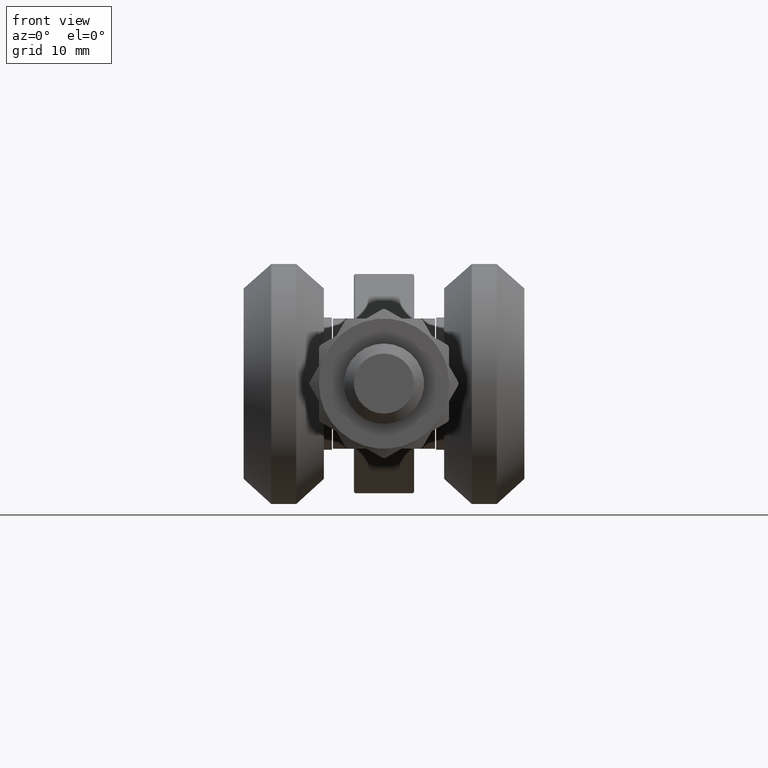
[diagram: clean part render]
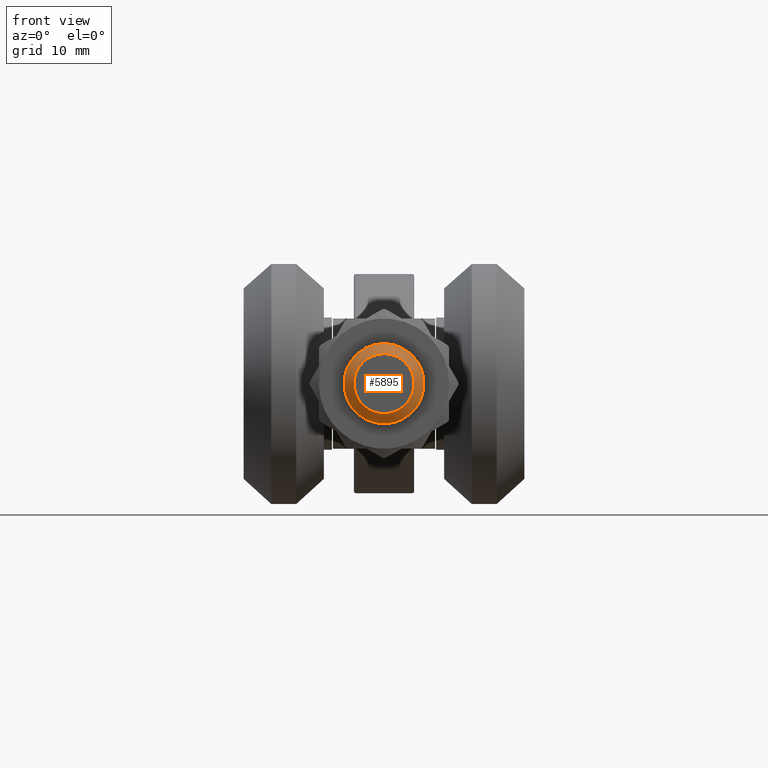
[diagram: same view with one face highlighted and labeled with its STEP entity id]
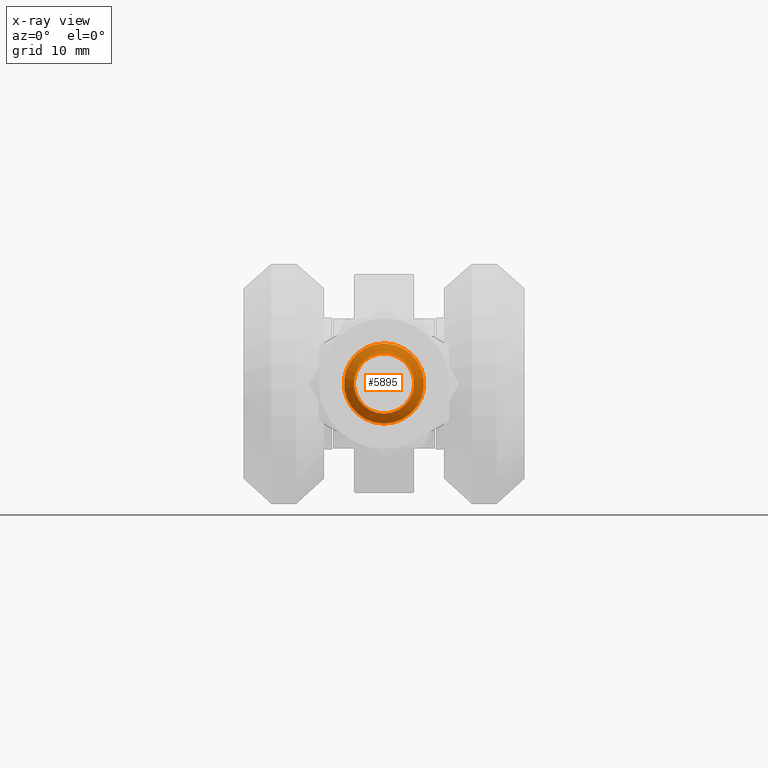
[diagram: x-ray of the same camera — body ghosted, the highlighted face saturated]
A machine part, front view. The second image highlights one B-rep face of the part: STEP entity #5895.
The next image is the same camera in x-ray: the body ghosted, the highlighted face saturated — about 0% of this face is hidden behind the body in this view.
In plain terms, the highlighted conical surface has half-angle 45 deg.
Its self-contained STEP definition (entity closure, byte-faithful):
#1017 = ORIENTED_EDGE ( 'NONE', *, *, #10910, .F. ) ;
#2752 = CIRCLE ( 'NONE', #21798, 3.000000000000001776 ) ;
#3119 = ORIENTED_EDGE ( 'NONE', *, *, #22198, .F. ) ;
#4163 = EDGE_LOOP ( 'NONE', ( #1017 ) ) ;
#4199 = CARTESIAN_POINT ( 'NONE',  ( 0.000000000000000000, -31.00000000000000000, -4.408728476930474011E-15 ) ) ;
#4391 = EDGE_LOOP ( 'NONE', ( #3119 ) ) ;
#5895 = ADVANCED_FACE ( 'NONE', ( #14309, #24725 ), #14986, .T. ) ;
#6068 = VERTEX_POINT ( 'NONE', #22906 ) ;
#6334 = DIRECTION ( 'NONE',  ( 0.000000000000000000, 1.000000000000000000, 1.281050355593787599E-16 ) ) ;
#6613 = CARTESIAN_POINT ( 'NONE',  ( 0.000000000000000000, -31.00000000000000000, -4.408728476930474011E-15 ) ) ;
#10910 = EDGE_CURVE ( 'NONE', #26254, #26254, #2752, .T. ) ;
#11777 = AXIS2_PLACEMENT_3D ( 'NONE', #22816, #26691, #18173 ) ;
#12726 = DIRECTION ( 'NONE',  ( 0.000000000000000000, -1.000000000000000000, -1.281050355593787846E-16 ) ) ;
#13505 = CIRCLE ( 'NONE', #11777, 4.000000000000000000 ) ;
#14309 = FACE_OUTER_BOUND ( 'NONE', #4391, .T. ) ;
#14986 = CONICAL_SURFACE ( 'NONE', #24264, 3.000000000000001776, 0.7853981633974435050 ) ;
#18173 = DIRECTION ( 'NONE',  ( 0.000000000000000000, 0.000000000000000000, -1.000000000000000000 ) ) ;
#21385 = DIRECTION ( 'NONE',  ( 0.000000000000000000, 0.000000000000000000, -1.000000000000000000 ) ) ;
#21798 = AXIS2_PLACEMENT_3D ( 'NONE', #6613, #12726, #21385 ) ;
#22198 = EDGE_CURVE ( 'NONE', #6068, #6068, #13505, .T. ) ;
#22816 = CARTESIAN_POINT ( 'NONE',  ( 0.000000000000000000, -29.99999999999999289, -4.280623441371094585E-15 ) ) ;
#22906 = CARTESIAN_POINT ( 'NONE',  ( 0.000000000000000000, -29.99999999999999289, -4.000000000000004441 ) ) ;
#23553 = DIRECTION ( 'NONE',  ( 0.000000000000000000, 0.000000000000000000, 1.000000000000000000 ) ) ;
#24264 = AXIS2_PLACEMENT_3D ( 'NONE', #4199, #6334, #23553 ) ;
#24600 = CARTESIAN_POINT ( 'NONE',  ( 0.000000000000000000, -31.00000000000000000, -3.000000000000006217 ) ) ;
#24725 = FACE_BOUND ( 'NONE', #4163, .T. ) ;
#26254 = VERTEX_POINT ( 'NONE', #24600 ) ;
#26691 = DIRECTION ( 'NONE',  ( 0.000000000000000000, 1.000000000000000000, 1.281050355593787599E-16 ) ) ;